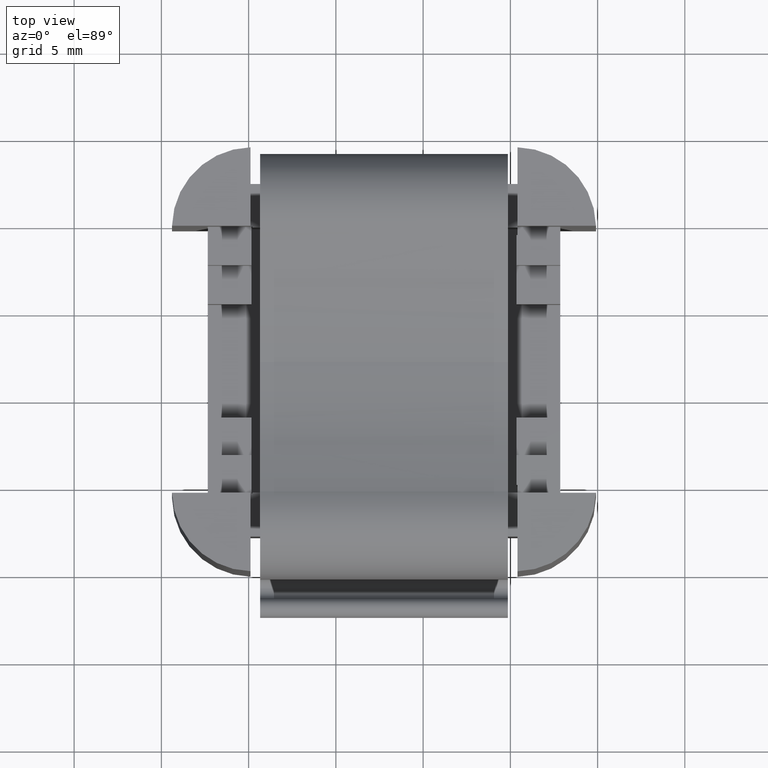
[diagram: clean part render]
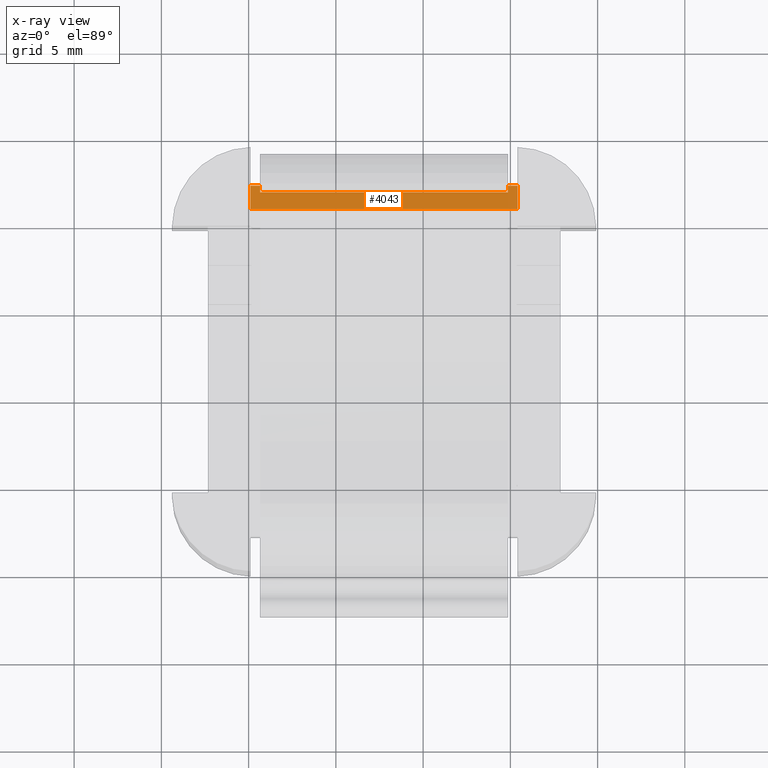
[diagram: x-ray — body ghosted, one internal face saturated and labeled with its STEP entity id]
A machine part, top view, then the same camera in x-ray: the body is ghosted and one INTERNAL B-rep face — a face not visible from any outside direction — is saturated and labeled: STEP entity #4043.
In plain terms, the highlighted planar face has unit normal (-0, 0, 1).
Its self-contained STEP definition (entity closure, byte-faithful):
#299 = CARTESIAN_POINT ( 'NONE',  ( 0.2090909090909657000, 22.24394666863502600, 11.40000000000000000 ) ) ;
#301 = DIRECTION ( 'NONE',  ( 1.000000000000000000, 0.0000000000000000000, 0.0000000000000000000 ) ) ;
#302 = LINE ( 'NONE', #299, #1015 ) ;
#694 = VECTOR ( 'NONE', #2353, 1000.000000000000000 ) ;
#706 = VECTOR ( 'NONE', #1629, 1000.000000000000000 ) ;
#718 = VECTOR ( 'NONE', #1740, 1000.000000000000000 ) ;
#746 = VECTOR ( 'NONE', #1165, 1000.000000000000000 ) ;
#807 = AXIS2_PLACEMENT_3D ( 'NONE', #1228, #1221, #1214 ) ;
#829 = VECTOR ( 'NONE', #2760, 1000.000000000000000 ) ;
#846 = VECTOR ( 'NONE', #2770, 1000.000000000000000 ) ;
#887 = VECTOR ( 'NONE', #1558, 1000.000000000000000 ) ;
#1015 = VECTOR ( 'NONE', #301, 1000.000000000000000 ) ;
#1159 = CARTESIAN_POINT ( 'NONE',  ( 0.1090909090909642800, -14.72606040412509300, 11.40000000000000000 ) ) ;
#1162 = LINE ( 'NONE', #1159, #746 ) ;
#1165 = DIRECTION ( 'NONE',  ( 0.0000000000000000000, 1.000000000000000000, 0.0000000000000000000 ) ) ;
#1206 = FACE_OUTER_BOUND ( 'NONE', #3750, .T. ) ;
#1214 = DIRECTION ( 'NONE',  ( 1.000000000000000000, 0.0000000000000000000, 0.0000000000000000000 ) ) ;
#1221 = DIRECTION ( 'NONE',  ( -0.0000000000000000000, 0.0000000000000000000, 1.000000000000000000 ) ) ;
#1228 = CARTESIAN_POINT ( 'NONE',  ( 0.2090909090909657000, 20.89394666863502400, 11.40000000000000000 ) ) ;
#1232 = PLANE ( 'NONE',  #807 ) ;
#1535 = CARTESIAN_POINT ( 'NONE',  ( 14.85677301338258400, -13.26214546632924000, 11.40000000000000000 ) ) ;
#1553 = LINE ( 'NONE', #1535, #887 ) ;
#1558 = DIRECTION ( 'NONE',  ( -2.334185942430046700E-013, 1.000000000000000000, 1.944692274331607200E-062 ) ) ;
#1617 = CARTESIAN_POINT ( 'NONE',  ( 0.2090909090909657000, 20.89394666863502400, 11.40000000000000000 ) ) ;
#1626 = LINE ( 'NONE', #1617, #706 ) ;
#1629 = DIRECTION ( 'NONE',  ( 1.000000000000000000, 0.0000000000000000000, 0.0000000000000000000 ) ) ;
#1725 = CARTESIAN_POINT ( 'NONE',  ( 15.40677301337948700, 20.89394666863502400, 11.40000000000000000 ) ) ;
#1740 = DIRECTION ( 'NONE',  ( 0.0000000000000000000, 1.000000000000000000, 0.0000000000000000000 ) ) ;
#1747 = LINE ( 'NONE', #1725, #718 ) ;
#1762 = CARTESIAN_POINT ( 'NONE',  ( 15.40677301337948700, 22.24394666863502600, 11.40000000000000000 ) ) ;
#1785 = CARTESIAN_POINT ( 'NONE',  ( 0.1090909090909642800, 20.89394666863502400, 11.40000000000000000 ) ) ;
#1789 = CARTESIAN_POINT ( 'NONE',  ( 14.85677301337445400, 22.24394666863502600, 11.40000000000000000 ) ) ;
#1833 = CARTESIAN_POINT ( 'NONE',  ( 15.40677301337948700, 20.89394666863502400, 11.40000000000000000 ) ) ;
#1848 = CARTESIAN_POINT ( 'NONE',  ( 0.1090909090909642800, 22.24394666863502600, 11.40000000000000000 ) ) ;
#1866 = CARTESIAN_POINT ( 'NONE',  ( 0.6567730133743755500, 21.86090910628459500, 11.40000000000000000 ) ) ;
#1906 = CARTESIAN_POINT ( 'NONE',  ( 0.6567730133742875100, 22.24394666863502600, 11.40000000000000000 ) ) ;
#1921 = CARTESIAN_POINT ( 'NONE',  ( 14.85677301337438500, 21.86090910628789900, 11.40000000000000000 ) ) ;
#2346 = CARTESIAN_POINT ( 'NONE',  ( 0.1567730133743808800, 21.86090910628447400, 11.40000000000000000 ) ) ;
#2348 = LINE ( 'NONE', #2346, #694 ) ;
#2353 = DIRECTION ( 'NONE',  ( -1.000000000000000000, -2.334186371227598000E-013, 0.0000000000000000000 ) ) ;
#2370 = ORIENTED_EDGE ( 'NONE', *, *, #4269, .T. ) ;
#2378 = ORIENTED_EDGE ( 'NONE', *, *, #4112, .T. ) ;
#2389 = ORIENTED_EDGE ( 'NONE', *, *, #4152, .F. ) ;
#2390 = ORIENTED_EDGE ( 'NONE', *, *, #3997, .F. ) ;
#2425 = ORIENTED_EDGE ( 'NONE', *, *, #3963, .F. ) ;
#2434 = ORIENTED_EDGE ( 'NONE', *, *, #4149, .T. ) ;
#2466 = ORIENTED_EDGE ( 'NONE', *, *, #4029, .T. ) ;
#2474 = ORIENTED_EDGE ( 'NONE', *, *, #4007, .F. ) ;
#2745 = LINE ( 'NONE', #2747, #829 ) ;
#2747 = CARTESIAN_POINT ( 'NONE',  ( 0.2090909090909657000, 22.24394666863502600, 11.40000000000000000 ) ) ;
#2760 = DIRECTION ( 'NONE',  ( 1.000000000000000000, 0.0000000000000000000, 0.0000000000000000000 ) ) ;
#2761 = LINE ( 'NONE', #2764, #846 ) ;
#2764 = CARTESIAN_POINT ( 'NONE',  ( 0.6567730133825752100, -13.26214546633256200, 11.40000000000000000 ) ) ;
#2770 = DIRECTION ( 'NONE',  ( -2.334185942430046700E-013, 1.000000000000000000, 1.944692274331607200E-062 ) ) ;
#3473 = VERTEX_POINT ( 'NONE', #1785 ) ;
#3510 = VERTEX_POINT ( 'NONE', #1762 ) ;
#3527 = VERTEX_POINT ( 'NONE', #1789 ) ;
#3582 = VERTEX_POINT ( 'NONE', #1848 ) ;
#3584 = VERTEX_POINT ( 'NONE', #1866 ) ;
#3594 = VERTEX_POINT ( 'NONE', #1833 ) ;
#3644 = VERTEX_POINT ( 'NONE', #1906 ) ;
#3650 = VERTEX_POINT ( 'NONE', #1921 ) ;
#3750 = EDGE_LOOP ( 'NONE', ( #2389, #2425, #2378, #2370, #2390, #2474, #2466, #2434 ) ) ;
#3963 = EDGE_CURVE ( 'NONE', #3650, #3584, #2348, .T. ) ;
#3997 = EDGE_CURVE ( 'NONE', #3594, #3510, #1747, .T. ) ;
#4007 = EDGE_CURVE ( 'NONE', #3473, #3594, #1626, .T. ) ;
#4029 = EDGE_CURVE ( 'NONE', #3473, #3582, #1162, .T. ) ;
#4043 = ADVANCED_FACE ( 'NONE', ( #1206 ), #1232, .F. ) ;
#4112 = EDGE_CURVE ( 'NONE', #3650, #3527, #1553, .T. ) ;
#4149 = EDGE_CURVE ( 'NONE', #3582, #3644, #2745, .T. ) ;
#4152 = EDGE_CURVE ( 'NONE', #3584, #3644, #2761, .T. ) ;
#4269 = EDGE_CURVE ( 'NONE', #3527, #3510, #302, .T. ) ;